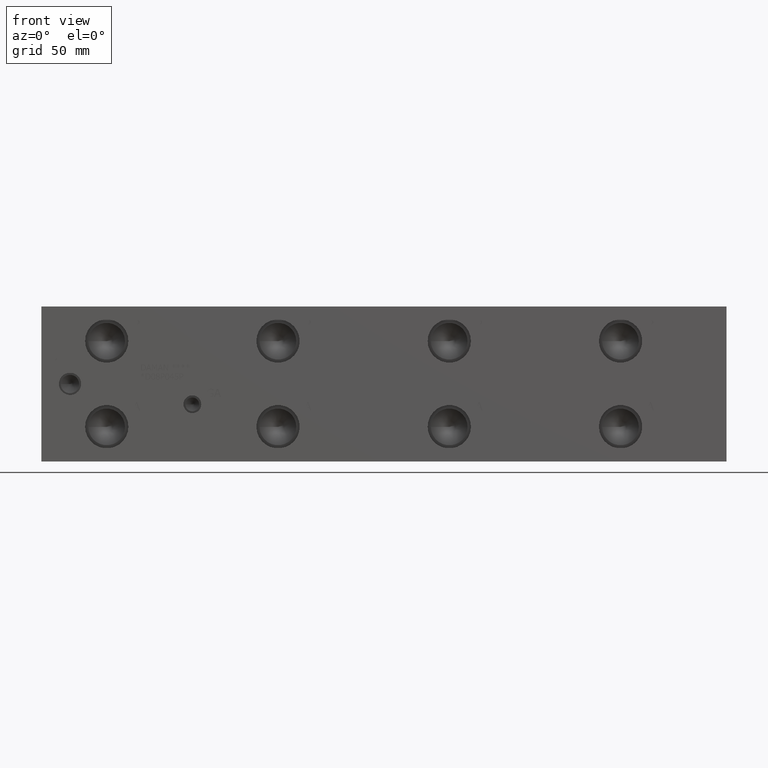
[diagram: clean part render]
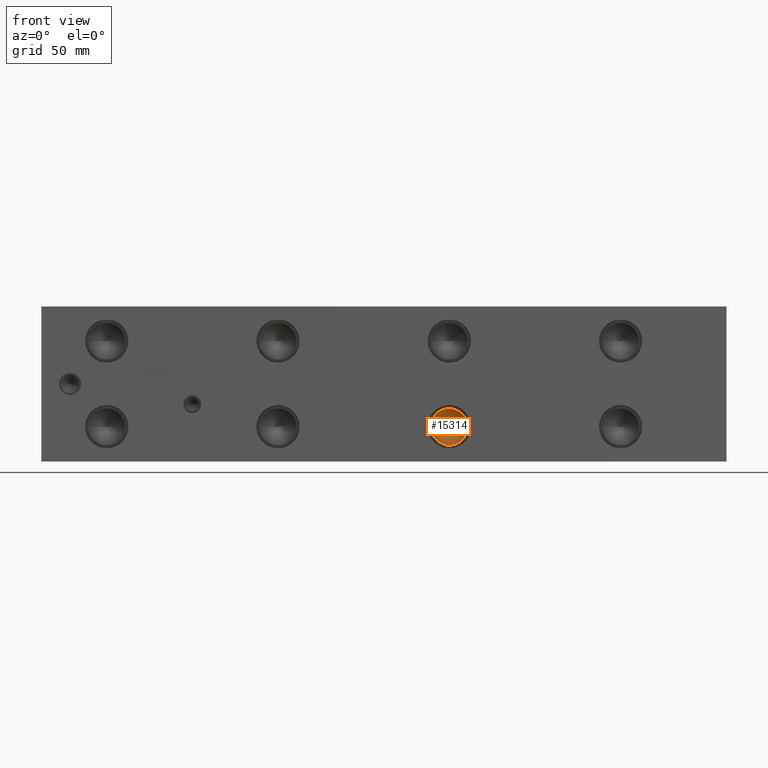
[diagram: same view with one face highlighted and labeled with its STEP entity id]
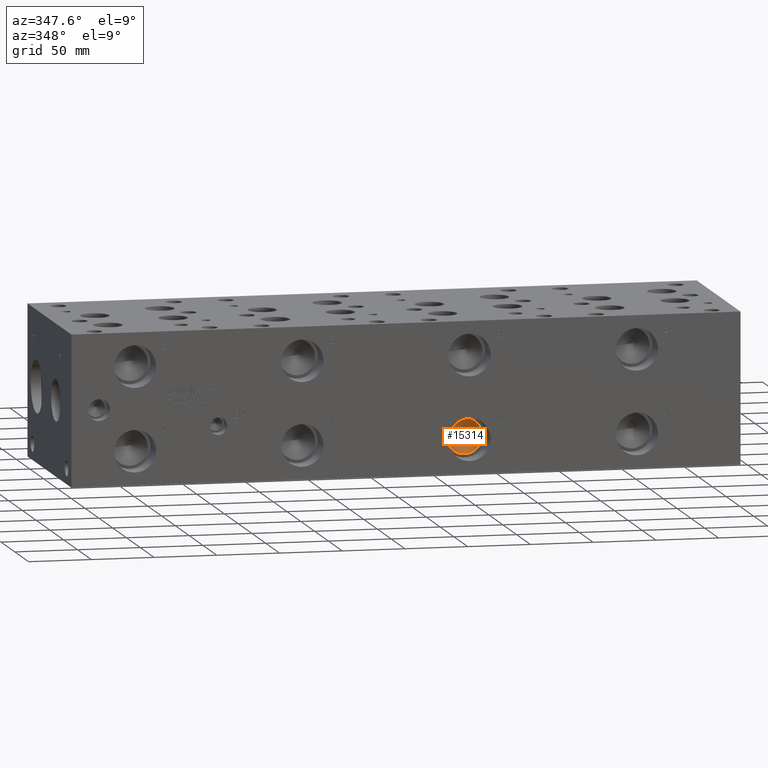
[diagram: same view with one face highlighted and labeled with its STEP entity id]
A machine part, front view. The second image highlights one B-rep face of the part: STEP entity #15314.
A second angle (auxiliary view) of the same face is appended — the face is thin or edge-on in the first view.
In plain terms, the highlighted conical surface has half-angle 60 deg.
Its self-contained STEP definition (entity closure, byte-faithful):
#153=CONICAL_SURFACE('',#16094,7.14375,1.0471975511966);
#518=CIRCLE('',#16095,14.2875);
#519=CIRCLE('',#16096,14.2875);
#1955=FACE_OUTER_BOUND('',#2848,.T.);
#2848=EDGE_LOOP('',(#12846,#12847,#12848,#12849));
#4319=LINE('',#25787,#5682);
#5682=VECTOR('',#18983,7.14375);
#6985=VERTEX_POINT('',#25783);
#6986=VERTEX_POINT('',#25784);
#6987=VERTEX_POINT('',#25786);
#9035=EDGE_CURVE('',#6985,#6986,#518,.T.);
#9036=EDGE_CURVE('',#6986,#6987,#4319,.T.);
#9037=EDGE_CURVE('',#6986,#6985,#519,.T.);
#12846=ORIENTED_EDGE('',*,*,#9035,.T.);
#12847=ORIENTED_EDGE('',*,*,#9036,.T.);
#12848=ORIENTED_EDGE('',*,*,#9036,.F.);
#12849=ORIENTED_EDGE('',*,*,#9037,.T.);
#15314=ADVANCED_FACE('',(#1955),#153,.F.);
#16094=AXIS2_PLACEMENT_3D('',#25782,#18979,#18980);
#16095=AXIS2_PLACEMENT_3D('',#25785,#18981,#18982);
#16096=AXIS2_PLACEMENT_3D('',#25788,#18984,#18985);
#18979=DIRECTION('center_axis',(0.,-1.,0.));
#18980=DIRECTION('ref_axis',(1.,0.,0.));
#18981=DIRECTION('center_axis',(0.,-1.,0.));
#18982=DIRECTION('ref_axis',(1.,0.,0.));
#18983=DIRECTION('',(0.866025403784438,0.5,1.06057523872491E-16));
#18984=DIRECTION('center_axis',(0.,-1.,0.));
#18985=DIRECTION('ref_axis',(1.,0.,0.));
#25782=CARTESIAN_POINT('Origin',(317.5,23.9485359855234,26.9748));
#25783=CARTESIAN_POINT('',(331.7875,19.82409,26.9748));
#25784=CARTESIAN_POINT('',(303.2125,19.82409,26.9748));
#25785=CARTESIAN_POINT('Origin',(317.5,19.82409,26.9748));
#25786=CARTESIAN_POINT('',(317.5,28.0729819710468,26.9748));
#25787=CARTESIAN_POINT('',(310.35625,23.9485359855234,26.9748));
#25788=CARTESIAN_POINT('Origin',(317.5,19.82409,26.9748));